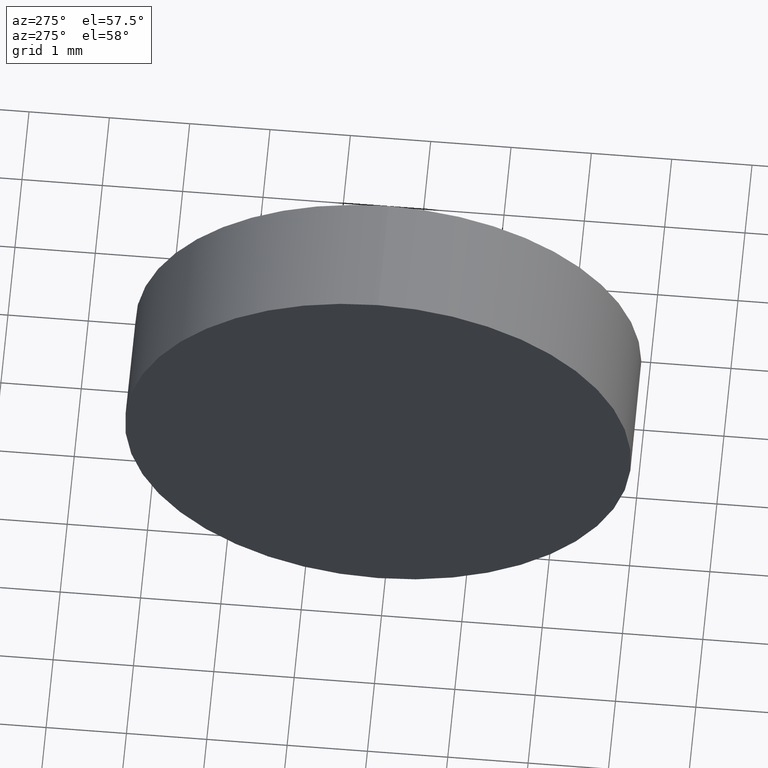
[diagram: clean part render]
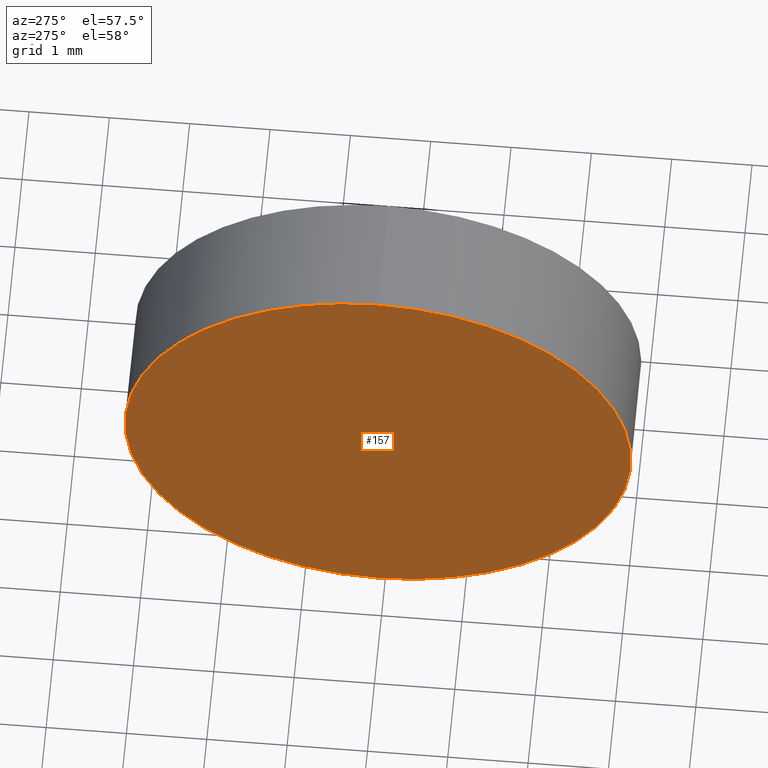
[diagram: same view with one face highlighted and labeled with its STEP entity id]
A machine part, auxiliary view. The second image highlights one B-rep face of the part: STEP entity #157.
In plain terms, the highlighted planar face has unit normal (1, 0, 0).
Its self-contained STEP definition (entity closure, byte-faithful):
#11 = AXIS2_PLACEMENT_3D ( 'NONE', #87, #109, #35 ) ;
#18 = VERTEX_POINT ( 'NONE', #60 ) ;
#26 = CARTESIAN_POINT ( 'NONE',  ( 438.4611293306011200, 24.08364198256748500, 0.0000000000000000000 ) ) ;
#35 = DIRECTION ( 'NONE',  ( 0.0000000000000000000, 0.0000000000000000000, 1.000000000000000000 ) ) ;
#42 = EDGE_LOOP ( 'NONE', ( #72, #59 ) ) ;
#52 = DIRECTION ( 'NONE',  ( -1.000000000000000000, -0.0000000000000000000, -0.0000000000000000000 ) ) ;
#59 = ORIENTED_EDGE ( 'NONE', *, *, #143, .T. ) ;
#60 = CARTESIAN_POINT ( 'NONE',  ( 438.4611293306011200, 24.08364198256748500, -3.149999999999999900 ) ) ;
#63 = CARTESIAN_POINT ( 'NONE',  ( 438.4611293306011200, 24.08364198256748500, 0.0000000000000000000 ) ) ;
#70 = CIRCLE ( 'NONE', #11, 3.149999999999999900 ) ;
#72 = ORIENTED_EDGE ( 'NONE', *, *, #82, .T. ) ;
#82 = EDGE_CURVE ( 'NONE', #173, #18, #133, .T. ) ;
#87 = CARTESIAN_POINT ( 'NONE',  ( 438.4611293306011200, 24.08364198256748500, 0.0000000000000000000 ) ) ;
#101 = FACE_OUTER_BOUND ( 'NONE', #42, .T. ) ;
#104 = PLANE ( 'NONE',  #134 ) ;
#105 = DIRECTION ( 'NONE',  ( 0.0000000000000000000, 0.0000000000000000000, -1.000000000000000000 ) ) ;
#109 = DIRECTION ( 'NONE',  ( -1.000000000000000000, -0.0000000000000000000, -0.0000000000000000000 ) ) ;
#120 = DIRECTION ( 'NONE',  ( 1.000000000000000000, 0.0000000000000000000, 0.0000000000000000000 ) ) ;
#133 = CIRCLE ( 'NONE', #175, 3.149999999999999900 ) ;
#134 = AXIS2_PLACEMENT_3D ( 'NONE', #26, #120, #105 ) ;
#143 = EDGE_CURVE ( 'NONE', #18, #173, #70, .T. ) ;
#154 = DIRECTION ( 'NONE',  ( 0.0000000000000000000, 0.0000000000000000000, 1.000000000000000000 ) ) ;
#156 = CARTESIAN_POINT ( 'NONE',  ( 438.4611293306011200, 24.08364198256748500, 3.149999999999999900 ) ) ;
#157 = ADVANCED_FACE ( 'NONE', ( #101 ), #104, .F. ) ;
#173 = VERTEX_POINT ( 'NONE', #156 ) ;
#175 = AXIS2_PLACEMENT_3D ( 'NONE', #63, #52, #154 ) ;